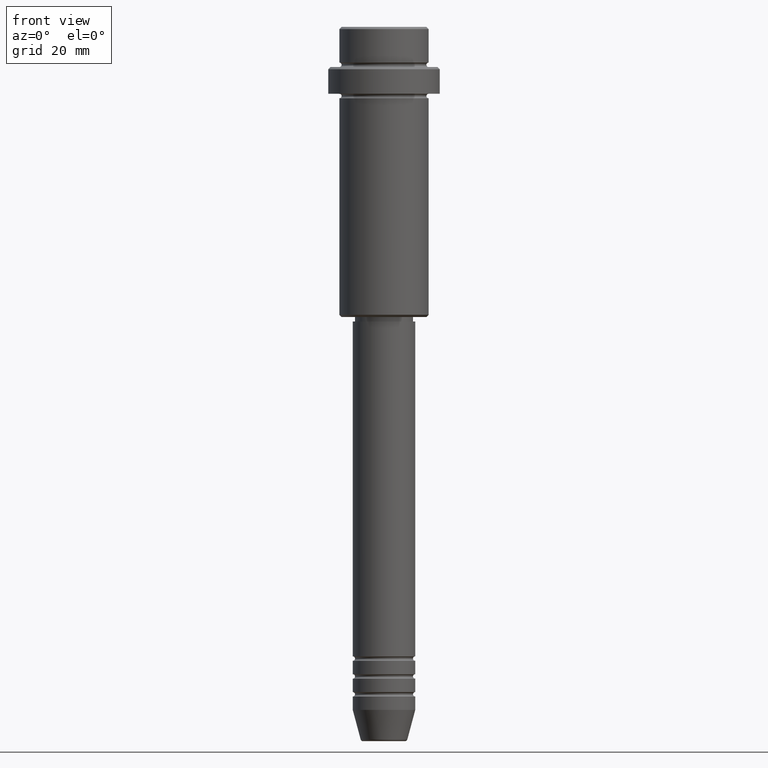
[diagram: clean part render]
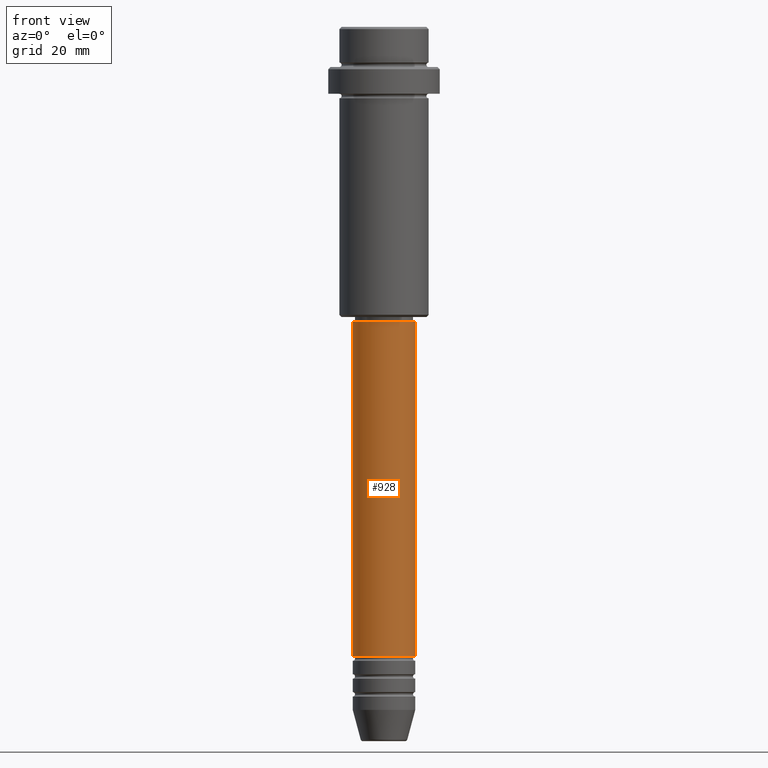
[diagram: same view with one face highlighted and labeled with its STEP entity id]
A machine part, front view. The second image highlights one B-rep face of the part: STEP entity #928.
In plain terms, the highlighted cylindrical surface (edge-blend (fillet) strip) has radius 7 mm, axis along (-0, -0, 1).
Its self-contained STEP definition (entity closure, byte-faithful):
#50 = DIRECTION ( 'NONE',  ( -0.000000000000000000, -0.000000000000000000, 1.000000000000000000 ) ) ;
#73 = VERTEX_POINT ( 'NONE', #256 ) ;
#75 = EDGE_CURVE ( 'NONE', #1036, #73, #136, .T. ) ;
#136 = CIRCLE ( 'NONE', #1081, 7.000000000000000000 ) ;
#177 = CARTESIAN_POINT ( 'NONE',  ( -7.000000000000000000, 8.572527594031473190E-16, -66.00000000000000000 ) ) ;
#256 = CARTESIAN_POINT ( 'NONE',  ( 7.000000000000000000, 0.000000000000000000, -140.9999999999999147 ) ) ;
#388 = DIRECTION ( 'NONE',  ( -0.000000000000000000, -0.000000000000000000, 1.000000000000000000 ) ) ;
#408 = CARTESIAN_POINT ( 'NONE',  ( -7.000000000000000000, 8.572527594031473190E-16, -140.9999999999999147 ) ) ;
#417 = AXIS2_PLACEMENT_3D ( 'NONE', #1134, #50, #1124 ) ;
#484 = DIRECTION ( 'NONE',  ( 1.000000000000000000, 0.000000000000000000, 0.000000000000000000 ) ) ;
#488 = VERTEX_POINT ( 'NONE', #177 ) ;
#518 = CARTESIAN_POINT ( 'NONE',  ( -7.000000000000000000, 8.572527594031473190E-16, 0.000000000000000000 ) ) ;
#557 = EDGE_CURVE ( 'NONE', #1036, #488, #1173, .T. ) ;
#567 = DIRECTION ( 'NONE',  ( -0.000000000000000000, -0.000000000000000000, 1.000000000000000000 ) ) ;
#569 = ORIENTED_EDGE ( 'NONE', *, *, #557, .F. ) ;
#609 = DIRECTION ( 'NONE',  ( -0.000000000000000000, -0.000000000000000000, 1.000000000000000000 ) ) ;
#657 = AXIS2_PLACEMENT_3D ( 'NONE', #1030, #567, #905 ) ;
#684 = FACE_OUTER_BOUND ( 'NONE', #1190, .T. ) ;
#695 = CARTESIAN_POINT ( 'NONE',  ( 0.000000000000000000, 0.000000000000000000, -140.9999999999999147 ) ) ;
#722 = CIRCLE ( 'NONE', #657, 7.000000000000000000 ) ;
#738 = VECTOR ( 'NONE', #1052, 1000.000000000000000 ) ;
#833 = CARTESIAN_POINT ( 'NONE',  ( 7.000000000000000000, 0.000000000000000000, -66.00000000000000000 ) ) ;
#862 = ORIENTED_EDGE ( 'NONE', *, *, #75, .T. ) ;
#905 = DIRECTION ( 'NONE',  ( 1.000000000000000000, 0.000000000000000000, 0.000000000000000000 ) ) ;
#928 = ADVANCED_FACE ( 'NONE', ( #684 ), #1147, .T. ) ;
#941 = ORIENTED_EDGE ( 'NONE', *, *, #1391, .T. ) ;
#1019 = VECTOR ( 'NONE', #388, 1000.000000000000000 ) ;
#1029 = VERTEX_POINT ( 'NONE', #833 ) ;
#1030 = CARTESIAN_POINT ( 'NONE',  ( 0.000000000000000000, 0.000000000000000000, -66.00000000000000000 ) ) ;
#1036 = VERTEX_POINT ( 'NONE', #408 ) ;
#1043 = LINE ( 'NONE', #1382, #1019 ) ;
#1052 = DIRECTION ( 'NONE',  ( -0.000000000000000000, -0.000000000000000000, 1.000000000000000000 ) ) ;
#1081 = AXIS2_PLACEMENT_3D ( 'NONE', #695, #609, #484 ) ;
#1124 = DIRECTION ( 'NONE',  ( 1.000000000000000000, 0.000000000000000000, 0.000000000000000000 ) ) ;
#1134 = CARTESIAN_POINT ( 'NONE',  ( 0.000000000000000000, 0.000000000000000000, 0.000000000000000000 ) ) ;
#1147 = CYLINDRICAL_SURFACE ( 'NONE', #417, 7.000000000000000000 ) ;
#1173 = LINE ( 'NONE', #518, #738 ) ;
#1190 = EDGE_LOOP ( 'NONE', ( #569, #862, #941, #1330 ) ) ;
#1286 = EDGE_CURVE ( 'NONE', #488, #1029, #722, .T. ) ;
#1330 = ORIENTED_EDGE ( 'NONE', *, *, #1286, .F. ) ;
#1382 = CARTESIAN_POINT ( 'NONE',  ( 7.000000000000000000, 0.000000000000000000, 0.000000000000000000 ) ) ;
#1391 = EDGE_CURVE ( 'NONE', #73, #1029, #1043, .T. ) ;